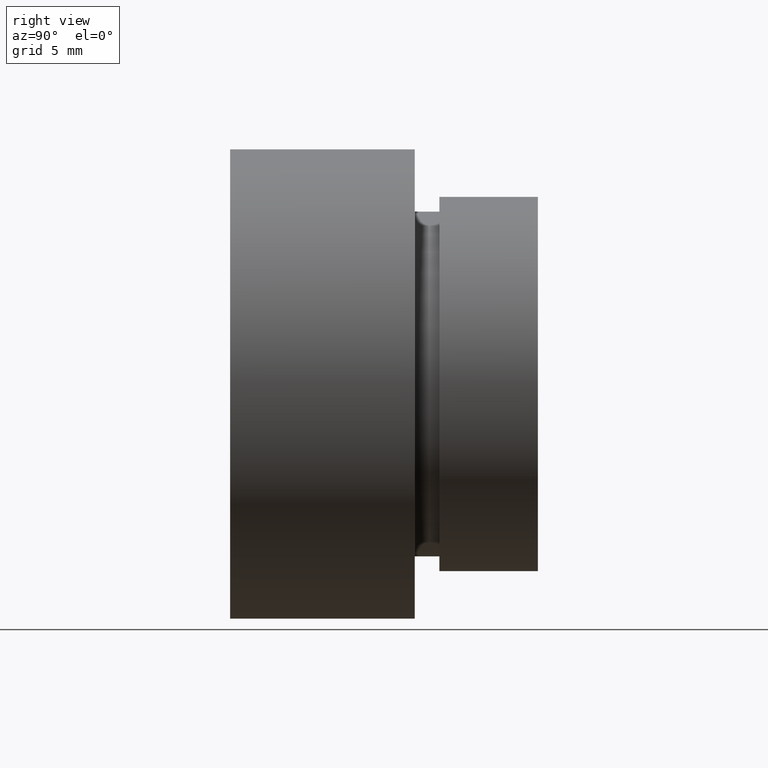
[diagram: clean part render]
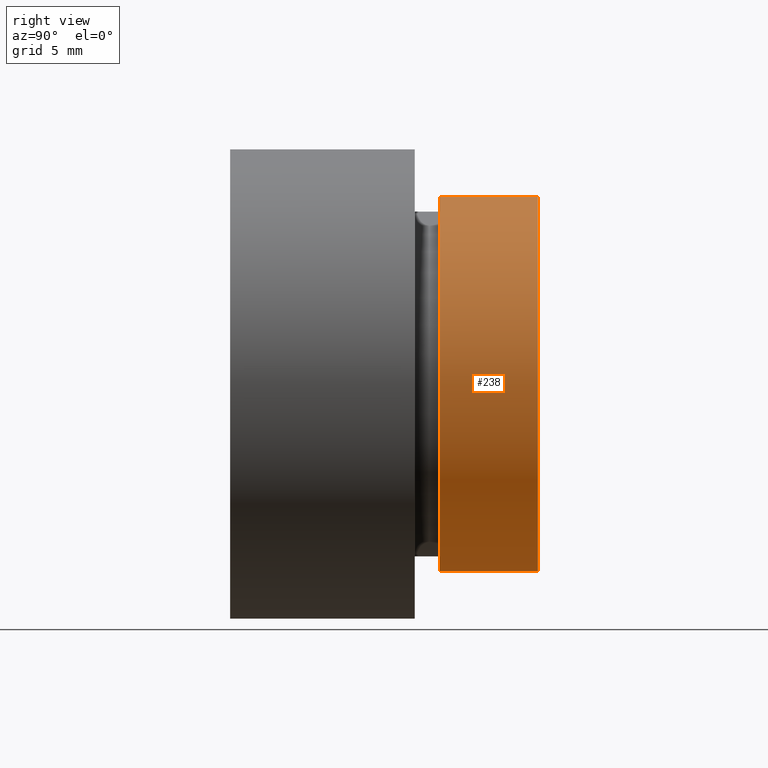
[diagram: same view with one face highlighted and labeled with its STEP entity id]
A machine part, right view. The second image highlights one B-rep face of the part: STEP entity #238.
In plain terms, the highlighted cylindrical surface (partial cylindrical patch) has radius 7.6 mm, axis along (-0, 1, -0).
Its self-contained STEP definition (entity closure, byte-faithful):
#6 = EDGE_CURVE ( 'NONE', #554, #219, #45, .T. ) ;
#24 = CARTESIAN_POINT ( 'NONE',  ( 9.307315673519905200E-016, 8.499999999999980500, -7.600000000000018300 ) ) ;
#25 = VERTEX_POINT ( 'NONE', #250 ) ;
#45 = LINE ( 'NONE', #608, #417 ) ;
#47 = VERTEX_POINT ( 'NONE', #24 ) ;
#48 = DIRECTION ( 'NONE',  ( 0.0000000000000000000, 0.0000000000000000000, 1.000000000000000000 ) ) ;
#55 = EDGE_CURVE ( 'NONE', #219, #25, #458, .T. ) ;
#95 = CARTESIAN_POINT ( 'NONE',  ( 0.0000000000000000000, 12.49999999999998400, 7.600000000000018300 ) ) ;
#97 = DIRECTION ( 'NONE',  ( -0.0000000000000000000, 1.000000000000000000, -0.0000000000000000000 ) ) ;
#133 = DIRECTION ( 'NONE',  ( -0.0000000000000000000, 1.000000000000000000, -0.0000000000000000000 ) ) ;
#145 = AXIS2_PLACEMENT_3D ( 'NONE', #281, #299, #602 ) ;
#170 = CARTESIAN_POINT ( 'NONE',  ( 0.0000000000000000000, 12.49999999999998400, 0.0000000000000000000 ) ) ;
#182 = AXIS2_PLACEMENT_3D ( 'NONE', #420, #133, #48 ) ;
#207 = ORIENTED_EDGE ( 'NONE', *, *, #6, .F. ) ;
#208 = CARTESIAN_POINT ( 'NONE',  ( 0.0000000000000000000, 8.499999999999980500, 7.600000000000018300 ) ) ;
#218 = ORIENTED_EDGE ( 'NONE', *, *, #496, .T. ) ;
#219 = VERTEX_POINT ( 'NONE', #95 ) ;
#227 = ORIENTED_EDGE ( 'NONE', *, *, #55, .F. ) ;
#238 = ADVANCED_FACE ( 'NONE', ( #574 ), #338, .T. ) ;
#242 = EDGE_LOOP ( 'NONE', ( #510, #218, #227, #207 ) ) ;
#250 = CARTESIAN_POINT ( 'NONE',  ( 9.307315673519905200E-016, 12.49999999999998400, -7.600000000000018300 ) ) ;
#281 = CARTESIAN_POINT ( 'NONE',  ( 0.0000000000000000000, 8.499999999999980500, 0.0000000000000000000 ) ) ;
#299 = DIRECTION ( 'NONE',  ( -0.0000000000000000000, 1.000000000000000000, -0.0000000000000000000 ) ) ;
#338 = CYLINDRICAL_SURFACE ( 'NONE', #182, 7.600000000000018300 ) ;
#349 = DIRECTION ( 'NONE',  ( -0.0000000000000000000, 1.000000000000000000, -0.0000000000000000000 ) ) ;
#350 = VECTOR ( 'NONE', #97, 1000.000000000000000 ) ;
#363 = LINE ( 'NONE', #374, #350 ) ;
#374 = CARTESIAN_POINT ( 'NONE',  ( 9.307315673519905200E-016, 161.3761669434274500, -7.600000000000018300 ) ) ;
#400 = DIRECTION ( 'NONE',  ( 0.0000000000000000000, 0.0000000000000000000, 1.000000000000000000 ) ) ;
#405 = DIRECTION ( 'NONE',  ( -0.0000000000000000000, 1.000000000000000000, -0.0000000000000000000 ) ) ;
#417 = VECTOR ( 'NONE', #349, 1000.000000000000000 ) ;
#420 = CARTESIAN_POINT ( 'NONE',  ( 0.0000000000000000000, 161.3761669434274500, 0.0000000000000000000 ) ) ;
#448 = CIRCLE ( 'NONE', #145, 7.600000000000018300 ) ;
#458 = CIRCLE ( 'NONE', #514, 7.600000000000018300 ) ;
#496 = EDGE_CURVE ( 'NONE', #47, #25, #363, .T. ) ;
#500 = EDGE_CURVE ( 'NONE', #554, #47, #448, .T. ) ;
#510 = ORIENTED_EDGE ( 'NONE', *, *, #500, .T. ) ;
#514 = AXIS2_PLACEMENT_3D ( 'NONE', #170, #405, #400 ) ;
#554 = VERTEX_POINT ( 'NONE', #208 ) ;
#574 = FACE_OUTER_BOUND ( 'NONE', #242, .T. ) ;
#602 = DIRECTION ( 'NONE',  ( 0.0000000000000000000, 0.0000000000000000000, 1.000000000000000000 ) ) ;
#608 = CARTESIAN_POINT ( 'NONE',  ( 0.0000000000000000000, 161.3761669434274500, 7.600000000000018300 ) ) ;